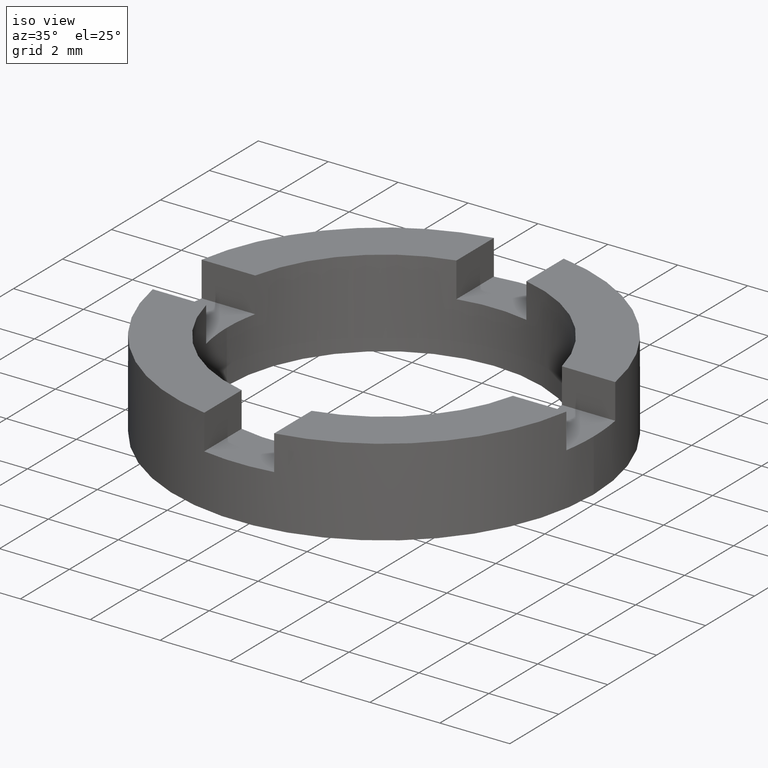
[diagram: clean part render]
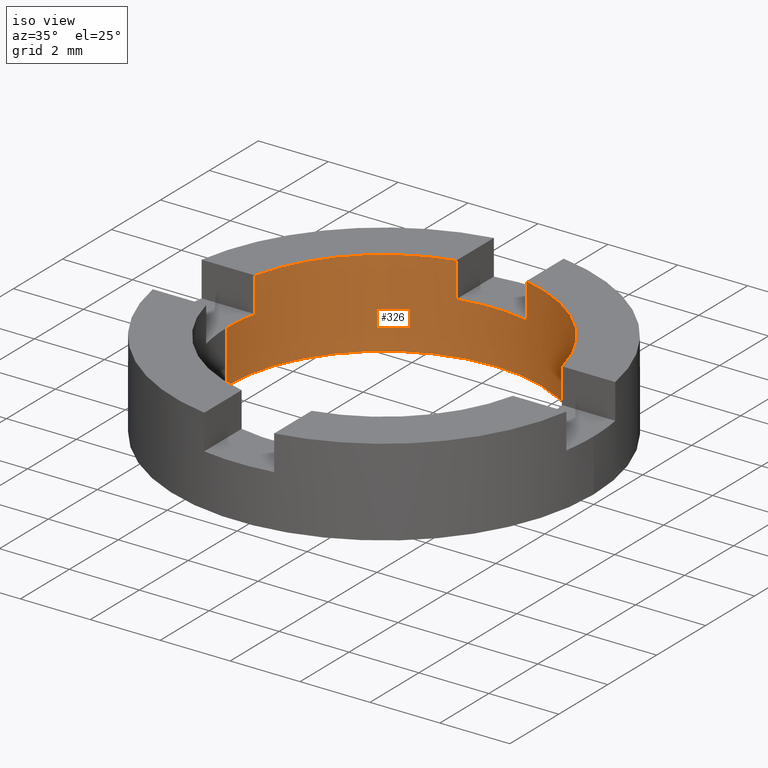
[diagram: same view with one face highlighted and labeled with its STEP entity id]
A machine part, iso view. The second image highlights one B-rep face of the part: STEP entity #326.
In plain terms, the highlighted cylindrical surface (partial cylindrical patch) has radius 4.5 mm, axis along (-0, -0, -1).
Its self-contained STEP definition (entity closure, byte-faithful):
#5 = VERTEX_POINT ( 'NONE', #466 ) ;
#7 = CARTESIAN_POINT ( 'NONE',  ( -4.500000000000000000, 0.000000000000000000, 1.500000000000000000 ) ) ;
#13 = DIRECTION ( 'NONE',  ( 0.000000000000000000, -0.000000000000000000, -1.000000000000000000 ) ) ;
#29 = ORIENTED_EDGE ( 'NONE', *, *, #447, .T. ) ;
#33 = ORIENTED_EDGE ( 'NONE', *, *, #458, .F. ) ;
#43 = VERTEX_POINT ( 'NONE', #605 ) ;
#47 = DIRECTION ( 'NONE',  ( -0.000000000000000000, -0.000000000000000000, 1.000000000000000000 ) ) ;
#57 = EDGE_CURVE ( 'NONE', #355, #654, #502, .T. ) ;
#72 = LINE ( 'NONE', #424, #365 ) ;
#76 = VERTEX_POINT ( 'NONE', #551 ) ;
#82 = LINE ( 'NONE', #161, #648 ) ;
#83 = ORIENTED_EDGE ( 'NONE', *, *, #229, .T. ) ;
#95 = CARTESIAN_POINT ( 'NONE',  ( 0.000000000000000000, 0.000000000000000000, 1.500000000000000000 ) ) ;
#105 = CIRCLE ( 'NONE', #142, 4.500000000000000000 ) ;
#121 = CARTESIAN_POINT ( 'NONE',  ( 4.500000000000000000, 5.510910596163088569E-16, 1.500000000000000000 ) ) ;
#142 = AXIS2_PLACEMENT_3D ( 'NONE', #554, #686, #754 ) ;
#153 = EDGE_CURVE ( 'NONE', #388, #540, #752, .T. ) ;
#154 = CARTESIAN_POINT ( 'NONE',  ( 0.000000000000000000, 0.000000000000000000, 1.500000000000000000 ) ) ;
#156 = EDGE_CURVE ( 'NONE', #299, #675, #505, .T. ) ;
#161 = CARTESIAN_POINT ( 'NONE',  ( -4.387482193696056854, 1.000000000000015321, 1.500000000000000000 ) ) ;
#166 = CARTESIAN_POINT ( 'NONE',  ( -4.387482193696056854, 1.000000000000015321, 2.500000000000000000 ) ) ;
#184 = DIRECTION ( 'NONE',  ( 1.000000000000000000, 0.000000000000000000, 0.000000000000000000 ) ) ;
#187 = CARTESIAN_POINT ( 'NONE',  ( 0.000000000000000000, 0.000000000000000000, 2.500000000000000000 ) ) ;
#193 = DIRECTION ( 'NONE',  ( -0.000000000000000000, -0.000000000000000000, 1.000000000000000000 ) ) ;
#194 = CARTESIAN_POINT ( 'NONE',  ( -0.9999999999999986677, 4.387482193696060406, 1.500000000000000000 ) ) ;
#197 = CARTESIAN_POINT ( 'NONE',  ( 1.000000000000001332, 4.387482193696059518, 1.500000000000000000 ) ) ;
#201 = CARTESIAN_POINT ( 'NONE',  ( 0.000000000000000000, 0.000000000000000000, 2.500000000000000000 ) ) ;
#209 = CARTESIAN_POINT ( 'NONE',  ( -0.9999999999999986677, 4.387482193696060406, 2.500000000000000000 ) ) ;
#213 = AXIS2_PLACEMENT_3D ( 'NONE', #201, #452, #413 ) ;
#215 = FACE_OUTER_BOUND ( 'NONE', #608, .T. ) ;
#229 = EDGE_CURVE ( 'NONE', #5, #540, #520, .T. ) ;
#232 = VECTOR ( 'NONE', #440, 1000.000000000000000 ) ;
#237 = VECTOR ( 'NONE', #361, 1000.000000000000000 ) ;
#258 = DIRECTION ( 'NONE',  ( -0.000000000000000000, -0.000000000000000000, -1.000000000000000000 ) ) ;
#270 = CYLINDRICAL_SURFACE ( 'NONE', #321, 4.500000000000000000 ) ;
#271 = ORIENTED_EDGE ( 'NONE', *, *, #706, .F. ) ;
#293 = ORIENTED_EDGE ( 'NONE', *, *, #153, .F. ) ;
#295 = DIRECTION ( 'NONE',  ( 0.000000000000000000, -0.000000000000000000, -1.000000000000000000 ) ) ;
#299 = VERTEX_POINT ( 'NONE', #695 ) ;
#302 = AXIS2_PLACEMENT_3D ( 'NONE', #378, #295, #483 ) ;
#303 = EDGE_CURVE ( 'NONE', #299, #388, #747, .T. ) ;
#321 = AXIS2_PLACEMENT_3D ( 'NONE', #187, #258, #728 ) ;
#325 = DIRECTION ( 'NONE',  ( 0.000000000000000000, -0.000000000000000000, -1.000000000000000000 ) ) ;
#326 = ADVANCED_FACE ( 'NONE', ( #215 ), #270, .F. ) ;
#329 = EDGE_CURVE ( 'NONE', #567, #5, #539, .T. ) ;
#333 = CIRCLE ( 'NONE', #709, 4.500000000000000000 ) ;
#355 = VERTEX_POINT ( 'NONE', #121 ) ;
#361 = DIRECTION ( 'NONE',  ( -0.000000000000000000, -0.000000000000000000, -1.000000000000000000 ) ) ;
#363 = ORIENTED_EDGE ( 'NONE', *, *, #329, .T. ) ;
#365 = VECTOR ( 'NONE', #463, 1000.000000000000000 ) ;
#378 = CARTESIAN_POINT ( 'NONE',  ( 0.000000000000000000, 0.000000000000000000, 1.500000000000000000 ) ) ;
#382 = ORIENTED_EDGE ( 'NONE', *, *, #156, .T. ) ;
#388 = VERTEX_POINT ( 'NONE', #197 ) ;
#393 = ORIENTED_EDGE ( 'NONE', *, *, #689, .T. ) ;
#398 = VERTEX_POINT ( 'NONE', #166 ) ;
#405 = CARTESIAN_POINT ( 'NONE',  ( 1.000000000000001332, 4.387482193696059518, 1.500000000000000000 ) ) ;
#406 = CARTESIAN_POINT ( 'NONE',  ( 1.000000000000001332, 4.387482193696059518, 2.500000000000000000 ) ) ;
#413 = DIRECTION ( 'NONE',  ( 1.000000000000000000, 0.000000000000000000, 0.000000000000000000 ) ) ;
#419 = DIRECTION ( 'NONE',  ( -0.000000000000000000, -0.000000000000000000, 1.000000000000000000 ) ) ;
#424 = CARTESIAN_POINT ( 'NONE',  ( -4.500000000000000000, 0.000000000000000000, 2.500000000000000000 ) ) ;
#430 = CARTESIAN_POINT ( 'NONE',  ( 4.500000000000000000, 5.510910596163088569E-16, 2.500000000000000000 ) ) ;
#431 = DIRECTION ( 'NONE',  ( 0.000000000000000000, 0.000000000000000000, 1.000000000000000000 ) ) ;
#440 = DIRECTION ( 'NONE',  ( -0.000000000000000000, -0.000000000000000000, 1.000000000000000000 ) ) ;
#447 = EDGE_CURVE ( 'NONE', #537, #43, #72, .T. ) ;
#448 = DIRECTION ( 'NONE',  ( 1.000000000000000000, 0.000000000000000000, 0.000000000000000000 ) ) ;
#452 = DIRECTION ( 'NONE',  ( 0.000000000000000000, 0.000000000000000000, 1.000000000000000000 ) ) ;
#454 = EDGE_CURVE ( 'NONE', #537, #76, #333, .T. ) ;
#456 = CARTESIAN_POINT ( 'NONE',  ( 4.500000000000000000, 5.510910596163088569E-16, 0.000000000000000000 ) ) ;
#458 = EDGE_CURVE ( 'NONE', #567, #355, #614, .T. ) ;
#463 = DIRECTION ( 'NONE',  ( -0.000000000000000000, -0.000000000000000000, -1.000000000000000000 ) ) ;
#466 = CARTESIAN_POINT ( 'NONE',  ( 4.387482193696063959, 0.9999999999999824585, 2.500000000000000000 ) ) ;
#483 = DIRECTION ( 'NONE',  ( 1.000000000000000000, -1.421085471520200372E-14, 0.000000000000000000 ) ) ;
#502 = LINE ( 'NONE', #430, #237 ) ;
#505 = LINE ( 'NONE', #194, #518 ) ;
#518 = VECTOR ( 'NONE', #47, 1000.000000000000000 ) ;
#520 = CIRCLE ( 'NONE', #213, 4.500000000000000000 ) ;
#536 = VECTOR ( 'NONE', #419, 1000.000000000000000 ) ;
#537 = VERTEX_POINT ( 'NONE', #7 ) ;
#539 = LINE ( 'NONE', #583, #536 ) ;
#540 = VERTEX_POINT ( 'NONE', #406 ) ;
#551 = CARTESIAN_POINT ( 'NONE',  ( -4.387482193696056854, 1.000000000000015321, 1.500000000000000000 ) ) ;
#554 = CARTESIAN_POINT ( 'NONE',  ( 0.000000000000000000, 0.000000000000000000, 2.500000000000000000 ) ) ;
#562 = ORIENTED_EDGE ( 'NONE', *, *, #606, .F. ) ;
#567 = VERTEX_POINT ( 'NONE', #741 ) ;
#583 = CARTESIAN_POINT ( 'NONE',  ( 4.387482193696063959, 0.9999999999999824585, 1.500000000000000000 ) ) ;
#603 = AXIS2_PLACEMENT_3D ( 'NONE', #95, #13, #448 ) ;
#605 = CARTESIAN_POINT ( 'NONE',  ( -4.500000000000000000, 0.000000000000000000, 0.000000000000000000 ) ) ;
#606 = EDGE_CURVE ( 'NONE', #76, #398, #82, .T. ) ;
#608 = EDGE_LOOP ( 'NONE', ( #698, #33, #363, #83, #293, #780, #382, #393, #562, #660, #29, #271 ) ) ;
#614 = CIRCLE ( 'NONE', #302, 4.500000000000000000 ) ;
#627 = CIRCLE ( 'NONE', #655, 4.500000000000000000 ) ;
#648 = VECTOR ( 'NONE', #193, 1000.000000000000000 ) ;
#654 = VERTEX_POINT ( 'NONE', #456 ) ;
#655 = AXIS2_PLACEMENT_3D ( 'NONE', #760, #431, #677 ) ;
#660 = ORIENTED_EDGE ( 'NONE', *, *, #454, .F. ) ;
#675 = VERTEX_POINT ( 'NONE', #209 ) ;
#677 = DIRECTION ( 'NONE',  ( 1.000000000000000000, 0.000000000000000000, 0.000000000000000000 ) ) ;
#686 = DIRECTION ( 'NONE',  ( 0.000000000000000000, 0.000000000000000000, 1.000000000000000000 ) ) ;
#689 = EDGE_CURVE ( 'NONE', #675, #398, #105, .T. ) ;
#695 = CARTESIAN_POINT ( 'NONE',  ( -0.9999999999999986677, 4.387482193696060406, 1.500000000000000000 ) ) ;
#698 = ORIENTED_EDGE ( 'NONE', *, *, #57, .F. ) ;
#706 = EDGE_CURVE ( 'NONE', #654, #43, #627, .T. ) ;
#709 = AXIS2_PLACEMENT_3D ( 'NONE', #154, #325, #184 ) ;
#728 = DIRECTION ( 'NONE',  ( -1.000000000000000000, 0.000000000000000000, 0.000000000000000000 ) ) ;
#741 = CARTESIAN_POINT ( 'NONE',  ( 4.387482193696063959, 0.9999999999999824585, 1.500000000000000000 ) ) ;
#747 = CIRCLE ( 'NONE', #603, 4.500000000000000000 ) ;
#752 = LINE ( 'NONE', #405, #232 ) ;
#754 = DIRECTION ( 'NONE',  ( 1.000000000000000000, 0.000000000000000000, 0.000000000000000000 ) ) ;
#760 = CARTESIAN_POINT ( 'NONE',  ( 0.000000000000000000, 0.000000000000000000, 0.000000000000000000 ) ) ;
#780 = ORIENTED_EDGE ( 'NONE', *, *, #303, .F. ) ;